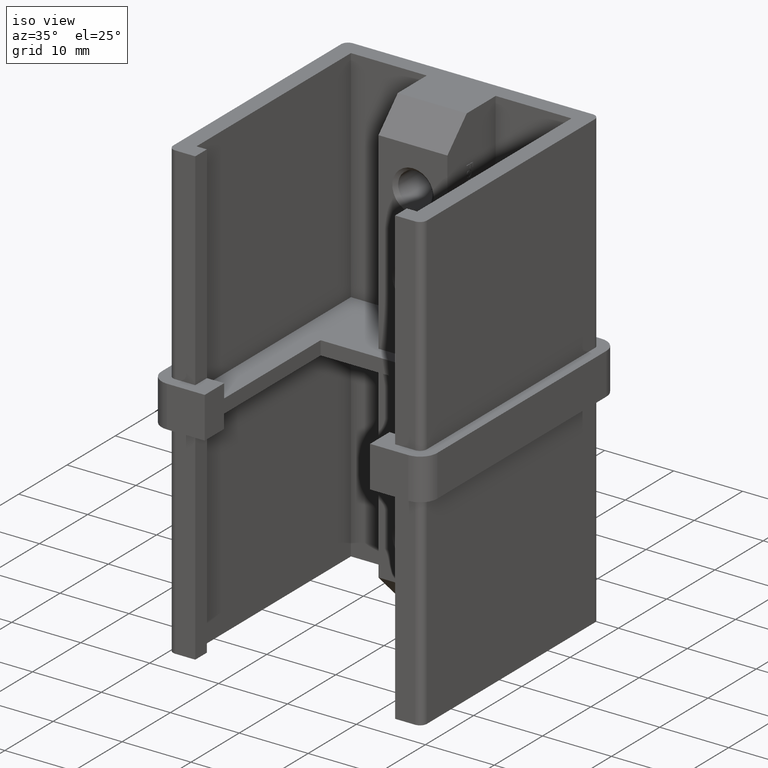
[diagram: clean part render]
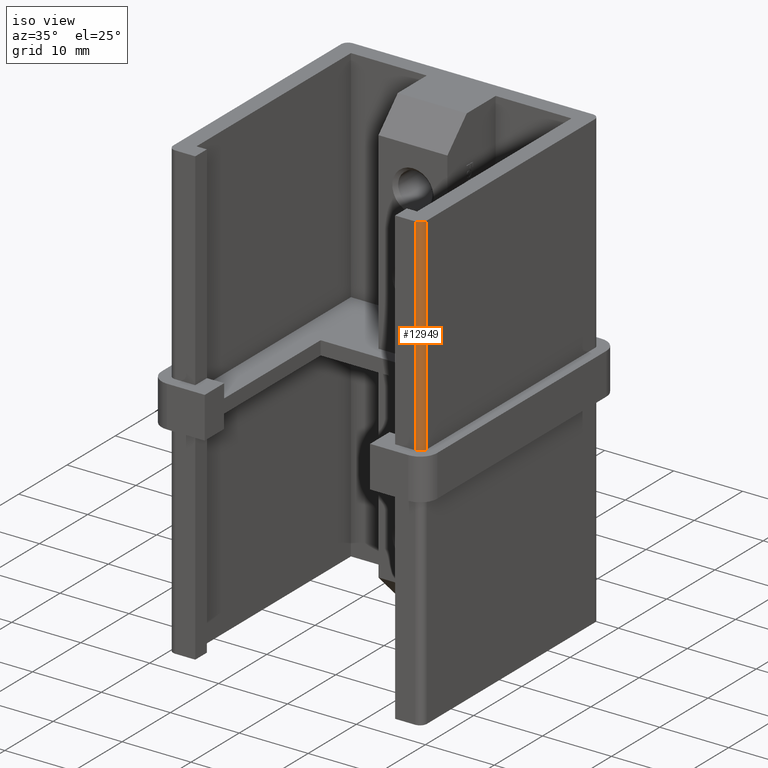
[diagram: same view with one face highlighted and labeled with its STEP entity id]
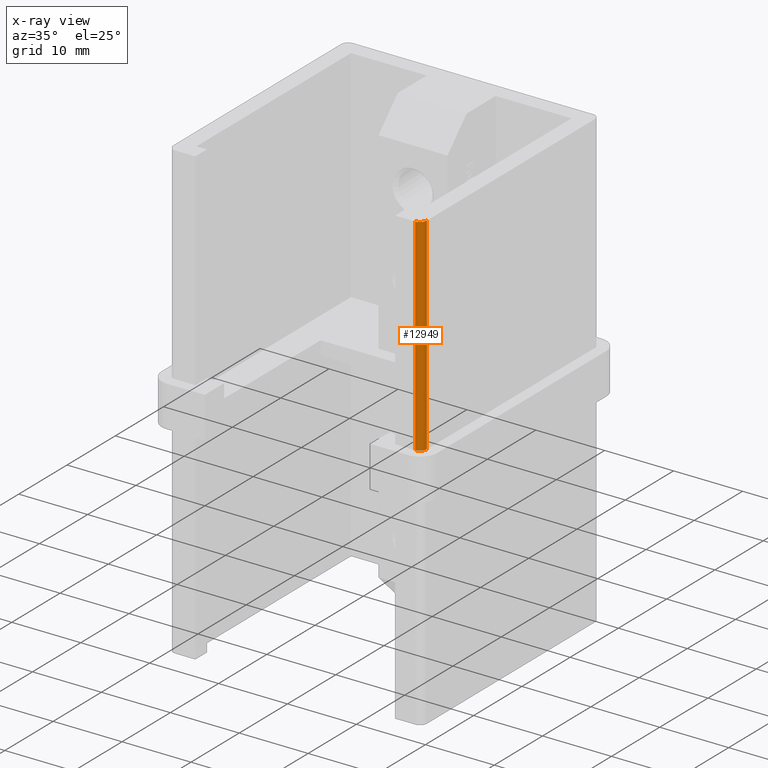
[diagram: x-ray of the same camera — body ghosted, the highlighted face saturated]
A machine part, iso view. The second image highlights one B-rep face of the part: STEP entity #12949.
The next image is the same camera in x-ray: the body ghosted, the highlighted face saturated — about 0% of this face is hidden behind the body in this view.
In plain terms, the highlighted cylindrical surface (edge-blend (fillet) strip) has radius 1 mm, axis along (0, 0, -1).
Its self-contained STEP definition (entity closure, byte-faithful):
#598 = EDGE_CURVE ( 'NONE', #7337, #5806, #803, .T. ) ;
#747 = CARTESIAN_POINT ( 'NONE',  ( 17.39999999999999147, -17.40000000000000568, 2.999999999999999112 ) ) ;
#803 = CIRCLE ( 'NONE', #13791, 1.000000000000000888 ) ;
#1006 = VERTEX_POINT ( 'NONE', #1587 ) ;
#1523 = EDGE_CURVE ( 'NONE', #1006, #13563, #10670, .T. ) ;
#1587 = CARTESIAN_POINT ( 'NONE',  ( 17.39999999999998792, -18.40000000000000568, 33.00000000000000000 ) ) ;
#2587 = LINE ( 'NONE', #10184, #12107 ) ;
#2638 = ORIENTED_EDGE ( 'NONE', *, *, #6591, .F. ) ;
#3565 = CARTESIAN_POINT ( 'NONE',  ( 17.39999999999999147, -17.40000000000000568, 33.00000000000000000 ) ) ;
#4479 = DIRECTION ( 'NONE',  ( 0.000000000000000000, 0.000000000000000000, -1.000000000000000000 ) ) ;
#4652 = AXIS2_PLACEMENT_3D ( 'NONE', #3565, #11447, #8168 ) ;
#5028 = DIRECTION ( 'NONE',  ( 0.000000000000000000, 0.000000000000000000, -1.000000000000000000 ) ) ;
#5322 = DIRECTION ( 'NONE',  ( 1.000000000000000000, 0.000000000000000000, 0.000000000000000000 ) ) ;
#5556 = CARTESIAN_POINT ( 'NONE',  ( 17.39999999999998792, -18.40000000000000568, 3.000000000000000000 ) ) ;
#5806 = VERTEX_POINT ( 'NONE', #5556 ) ;
#6106 = CARTESIAN_POINT ( 'NONE',  ( 17.39999999999998792, -18.40000000000000568, 33.00000000000000000 ) ) ;
#6215 = DIRECTION ( 'NONE',  ( -0.000000000000000000, -0.000000000000000000, 1.000000000000000000 ) ) ;
#6217 = EDGE_CURVE ( 'NONE', #5806, #1006, #9481, .T. ) ;
#6312 = DIRECTION ( 'NONE',  ( -1.000000000000000000, 0.000000000000000000, 0.000000000000000000 ) ) ;
#6580 = AXIS2_PLACEMENT_3D ( 'NONE', #13036, #5028, #6312 ) ;
#6591 = EDGE_CURVE ( 'NONE', #13563, #7337, #2587, .T. ) ;
#7337 = VERTEX_POINT ( 'NONE', #10992 ) ;
#8168 = DIRECTION ( 'NONE',  ( 1.000000000000000000, 0.000000000000000000, 0.000000000000000000 ) ) ;
#8428 = EDGE_LOOP ( 'NONE', ( #13875, #11763, #13793, #2638 ) ) ;
#8658 = DIRECTION ( 'NONE',  ( 0.000000000000000000, -0.000000000000000000, -1.000000000000000000 ) ) ;
#9481 = LINE ( 'NONE', #6106, #14608 ) ;
#10184 = CARTESIAN_POINT ( 'NONE',  ( 18.39999999999999147, -17.40000000000000568, 33.00000000000000000 ) ) ;
#10670 = CIRCLE ( 'NONE', #4652, 1.000000000000000888 ) ;
#10992 = CARTESIAN_POINT ( 'NONE',  ( 18.39999999999999147, -17.40000000000000568, 3.000000000000000000 ) ) ;
#11447 = DIRECTION ( 'NONE',  ( 0.000000000000000000, 0.000000000000000000, 1.000000000000000000 ) ) ;
#11763 = ORIENTED_EDGE ( 'NONE', *, *, #6217, .F. ) ;
#12107 = VECTOR ( 'NONE', #4479, 1000.000000000000000 ) ;
#12667 = CYLINDRICAL_SURFACE ( 'NONE', #6580, 1.000000000000000888 ) ;
#12949 = ADVANCED_FACE ( 'NONE', ( #14615 ), #12667, .T. ) ;
#13036 = CARTESIAN_POINT ( 'NONE',  ( 17.39999999999999147, -17.40000000000000568, 33.00000000000000000 ) ) ;
#13563 = VERTEX_POINT ( 'NONE', #14585 ) ;
#13791 = AXIS2_PLACEMENT_3D ( 'NONE', #747, #8658, #5322 ) ;
#13793 = ORIENTED_EDGE ( 'NONE', *, *, #598, .F. ) ;
#13875 = ORIENTED_EDGE ( 'NONE', *, *, #1523, .F. ) ;
#14585 = CARTESIAN_POINT ( 'NONE',  ( 18.39999999999999147, -17.40000000000000568, 33.00000000000000000 ) ) ;
#14608 = VECTOR ( 'NONE', #6215, 1000.000000000000000 ) ;
#14615 = FACE_OUTER_BOUND ( 'NONE', #8428, .T. ) ;